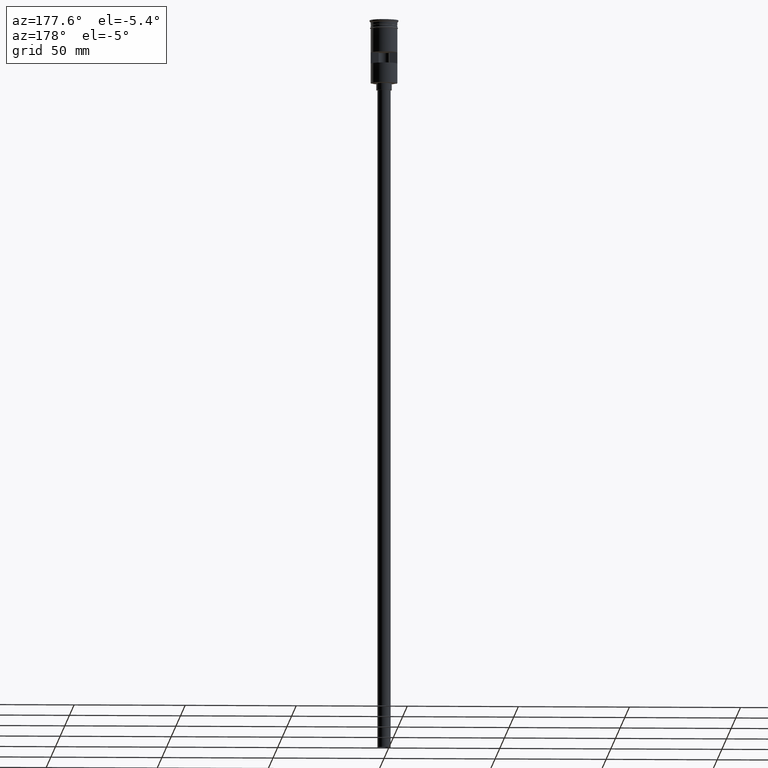
[diagram: clean part render]
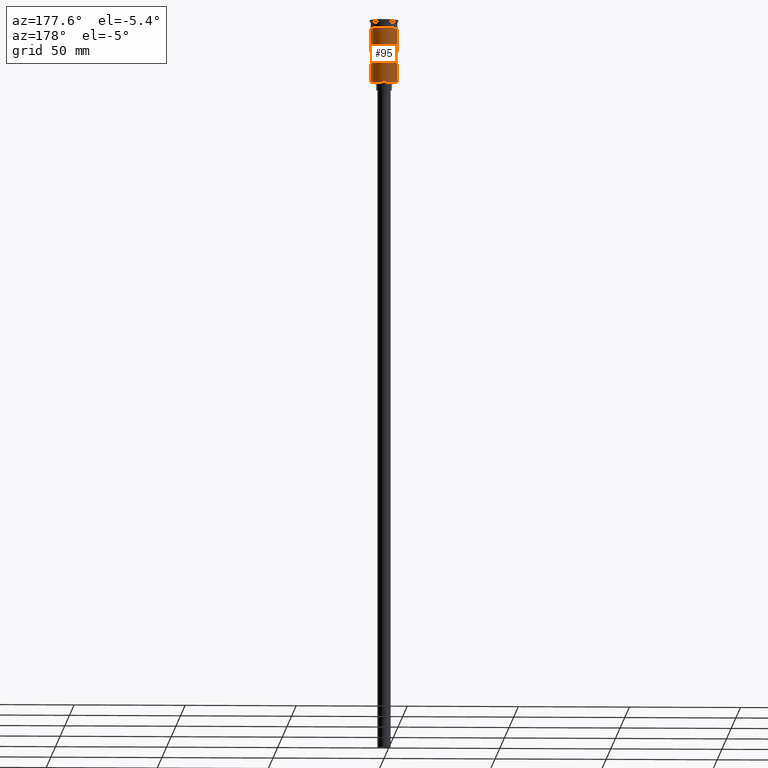
[diagram: same view with one face highlighted and labeled with its STEP entity id]
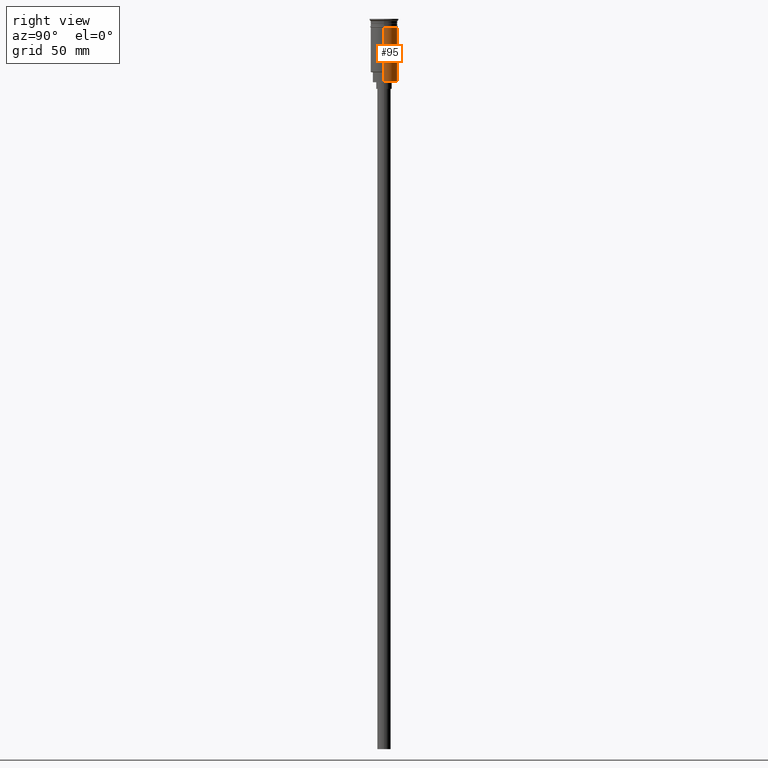
[diagram: same view with one face highlighted and labeled with its STEP entity id]
A machine part, auxiliary view. The second image highlights one B-rep face of the part: STEP entity #95.
A second angle (right view) of the same face is appended — the face is thin or edge-on in the first view.
In plain terms, the highlighted cylindrical surface (edge-blend (fillet) strip) has radius 6 mm, axis along (-0, -0, 1).
Its self-contained STEP definition (entity closure, byte-faithful):
#7 = DIRECTION ( 'NONE',  ( -0.000000000000000000, -0.000000000000000000, 1.000000000000000000 ) ) ;
#14 = ORIENTED_EDGE ( 'NONE', *, *, #1104, .F. ) ;
#18 = CARTESIAN_POINT ( 'NONE',  ( -5.969924622639716461, 0.5999999999999997558, 0.000000000000000000 ) ) ;
#31 = ORIENTED_EDGE ( 'NONE', *, *, #1497, .T. ) ;
#42 = CARTESIAN_POINT ( 'NONE',  ( -5.999999999999997335, 7.347880794884116778E-16, 0.000000000000000000 ) ) ;
#54 = CIRCLE ( 'NONE', #1585, 5.999999999999997335 ) ;
#84 = CARTESIAN_POINT ( 'NONE',  ( 0.000000000000000000, 0.000000000000000000, 0.000000000000000000 ) ) ;
#95 = ADVANCED_FACE ( 'NONE', ( #1055, #449 ), #928, .T. ) ;
#111 = CIRCLE ( 'NONE', #1399, 6.000000000000000000 ) ;
#119 = DIRECTION ( 'NONE',  ( 0.000000000000000000, -1.000000000000000000, 2.891205793294679805E-16 ) ) ;
#134 = CIRCLE ( 'NONE', #1457, 5.999999999999997335 ) ;
#141 = ORIENTED_EDGE ( 'NONE', *, *, #1412, .T. ) ;
#147 = EDGE_LOOP ( 'NONE', ( #141, #894, #887, #156, #1180, #31 ) ) ;
#156 = ORIENTED_EDGE ( 'NONE', *, *, #529, .F. ) ;
#216 = VERTEX_POINT ( 'NONE', #491 ) ;
#233 = ORIENTED_EDGE ( 'NONE', *, *, #1371, .F. ) ;
#239 = CIRCLE ( 'NONE', #266, 5.999999999999997335 ) ;
#242 = VECTOR ( 'NONE', #750, 1000.000000000000000 ) ;
#266 = AXIS2_PLACEMENT_3D ( 'NONE', #1247, #1123, #119 ) ;
#329 = DIRECTION ( 'NONE',  ( 1.000000000000000000, 0.000000000000000000, 0.000000000000000000 ) ) ;
#335 = CARTESIAN_POINT ( 'NONE',  ( -5.999999999999994671, 0.000000000000000000, -23.79999999999995453 ) ) ;
#360 = EDGE_CURVE ( 'NONE', #1011, #740, #111, .T. ) ;
#383 = LINE ( 'NONE', #18, #1215 ) ;
#438 = EDGE_CURVE ( 'NONE', #1544, #1449, #54, .T. ) ;
#447 = DIRECTION ( 'NONE',  ( -1.000000000000000000, 0.000000000000000000, 0.000000000000000000 ) ) ;
#449 = FACE_OUTER_BOUND ( 'NONE', #147, .T. ) ;
#462 = DIRECTION ( 'NONE',  ( -0.000000000000000000, -0.000000000000000000, 1.000000000000000000 ) ) ;
#464 = CARTESIAN_POINT ( 'NONE',  ( 5.999999999999994671, 7.347880794884112834E-16, -28.29999999999999716 ) ) ;
#475 = VERTEX_POINT ( 'NONE', #1073 ) ;
#489 = CARTESIAN_POINT ( 'NONE',  ( 5.999999999999997335, 0.000000000000000000, 0.000000000000000000 ) ) ;
#491 = CARTESIAN_POINT ( 'NONE',  ( 5.999999999999997335, 7.347880794884115792E-16, -23.79999999999995453 ) ) ;
#494 = CARTESIAN_POINT ( 'NONE',  ( 6.000000000000000000, 0.000000000000000000, -3.799999999999998490 ) ) ;
#526 = VERTEX_POINT ( 'NONE', #622 ) ;
#529 = EDGE_CURVE ( 'NONE', #216, #1011, #1342, .T. ) ;
#597 = CARTESIAN_POINT ( 'NONE',  ( 5.969924622639716461, 0.5999999999999997558, 0.000000000000000000 ) ) ;
#622 = CARTESIAN_POINT ( 'NONE',  ( 5.969924622639712908, 0.5999999999999999778, -14.49999999999999822 ) ) ;
#635 = DIRECTION ( 'NONE',  ( 1.000000000000000000, 0.000000000000000000, 0.000000000000000000 ) ) ;
#647 = LINE ( 'NONE', #42, #665 ) ;
#665 = VECTOR ( 'NONE', #895, 1000.000000000000000 ) ;
#701 = CARTESIAN_POINT ( 'NONE',  ( 0.000000000000000000, 0.000000000000000000, -19.50000000000000355 ) ) ;
#703 = LINE ( 'NONE', #597, #814 ) ;
#738 = AXIS2_PLACEMENT_3D ( 'NONE', #84, #462, #329 ) ;
#740 = VERTEX_POINT ( 'NONE', #765 ) ;
#744 = CARTESIAN_POINT ( 'NONE',  ( -5.969924622639716461, 0.5999999999999997558, -19.50000000000000355 ) ) ;
#750 = DIRECTION ( 'NONE',  ( -0.000000000000000000, -0.000000000000000000, 1.000000000000000000 ) ) ;
#765 = CARTESIAN_POINT ( 'NONE',  ( -6.000000000000000000, 7.347880794884119736E-16, -3.799999999999998490 ) ) ;
#814 = VECTOR ( 'NONE', #1207, 1000.000000000000000 ) ;
#887 = ORIENTED_EDGE ( 'NONE', *, *, #360, .F. ) ;
#894 = ORIENTED_EDGE ( 'NONE', *, *, #1239, .T. ) ;
#895 = DIRECTION ( 'NONE',  ( -0.000000000000000000, -0.000000000000000000, 1.000000000000000000 ) ) ;
#903 = VERTEX_POINT ( 'NONE', #1071 ) ;
#909 = VERTEX_POINT ( 'NONE', #464 ) ;
#928 = CYLINDRICAL_SURFACE ( 'NONE', #738, 5.999999999999997335 ) ;
#952 = EDGE_LOOP ( 'NONE', ( #233, #1012, #14, #1233 ) ) ;
#966 = DIRECTION ( 'NONE',  ( -1.000000000000000000, 0.000000000000000000, 0.000000000000000000 ) ) ;
#996 = EDGE_CURVE ( 'NONE', #903, #526, #239, .T. ) ;
#999 = LINE ( 'NONE', #1008, #1316 ) ;
#1008 = CARTESIAN_POINT ( 'NONE',  ( 5.999999999999994671, 7.347880794884112834E-16, -28.50000000000000000 ) ) ;
#1011 = VERTEX_POINT ( 'NONE', #494 ) ;
#1012 = ORIENTED_EDGE ( 'NONE', *, *, #996, .F. ) ;
#1046 = EDGE_CURVE ( 'NONE', #909, #216, #999, .T. ) ;
#1055 = FACE_BOUND ( 'NONE', #952, .T. ) ;
#1070 = LINE ( 'NONE', #1476, #242 ) ;
#1071 = CARTESIAN_POINT ( 'NONE',  ( -5.969924622639716461, 0.5999999999999999778, -14.49999999999999822 ) ) ;
#1073 = CARTESIAN_POINT ( 'NONE',  ( -5.999999999999994671, 0.000000000000000000, -28.29999999999999716 ) ) ;
#1096 = DIRECTION ( 'NONE',  ( -0.000000000000000000, -0.000000000000000000, 1.000000000000000000 ) ) ;
#1104 = EDGE_CURVE ( 'NONE', #1449, #903, #383, .T. ) ;
#1123 = DIRECTION ( 'NONE',  ( -0.000000000000000000, -3.212450881438533227E-16, -1.000000000000000000 ) ) ;
#1180 = ORIENTED_EDGE ( 'NONE', *, *, #1046, .F. ) ;
#1193 = DIRECTION ( 'NONE',  ( 0.000000000000000000, 0.000000000000000000, 1.000000000000000000 ) ) ;
#1207 = DIRECTION ( 'NONE',  ( 0.000000000000000000, 0.000000000000000000, -1.000000000000000000 ) ) ;
#1215 = VECTOR ( 'NONE', #1507, 1000.000000000000000 ) ;
#1233 = ORIENTED_EDGE ( 'NONE', *, *, #438, .F. ) ;
#1239 = EDGE_CURVE ( 'NONE', #1384, #740, #647, .T. ) ;
#1247 = CARTESIAN_POINT ( 'NONE',  ( 0.000000000000000000, 0.000000000000000000, -14.49999999999999822 ) ) ;
#1316 = VECTOR ( 'NONE', #7, 1000.000000000000000 ) ;
#1342 = LINE ( 'NONE', #489, #1529 ) ;
#1362 = CARTESIAN_POINT ( 'NONE',  ( 5.969924622639712908, 0.5999999999999999778, -19.50000000000000355 ) ) ;
#1367 = DIRECTION ( 'NONE',  ( 0.000000000000000000, 0.000000000000000000, 1.000000000000000000 ) ) ;
#1371 = EDGE_CURVE ( 'NONE', #526, #1544, #703, .T. ) ;
#1384 = VERTEX_POINT ( 'NONE', #335 ) ;
#1399 = AXIS2_PLACEMENT_3D ( 'NONE', #1410, #1542, #635 ) ;
#1410 = CARTESIAN_POINT ( 'NONE',  ( 0.000000000000000000, 0.000000000000000000, -3.799999999999998490 ) ) ;
#1412 = EDGE_CURVE ( 'NONE', #475, #1384, #1070, .T. ) ;
#1449 = VERTEX_POINT ( 'NONE', #744 ) ;
#1457 = AXIS2_PLACEMENT_3D ( 'NONE', #1500, #1367, #966 ) ;
#1476 = CARTESIAN_POINT ( 'NONE',  ( -5.999999999999994671, 0.000000000000000000, -28.50000000000000000 ) ) ;
#1497 = EDGE_CURVE ( 'NONE', #909, #475, #134, .T. ) ;
#1500 = CARTESIAN_POINT ( 'NONE',  ( 0.000000000000000000, 0.000000000000000000, -28.29999999999999716 ) ) ;
#1507 = DIRECTION ( 'NONE',  ( -0.000000000000000000, -0.000000000000000000, 1.000000000000000000 ) ) ;
#1529 = VECTOR ( 'NONE', #1096, 1000.000000000000000 ) ;
#1542 = DIRECTION ( 'NONE',  ( -0.000000000000000000, -0.000000000000000000, 1.000000000000000000 ) ) ;
#1544 = VERTEX_POINT ( 'NONE', #1362 ) ;
#1585 = AXIS2_PLACEMENT_3D ( 'NONE', #701, #1193, #447 ) ;